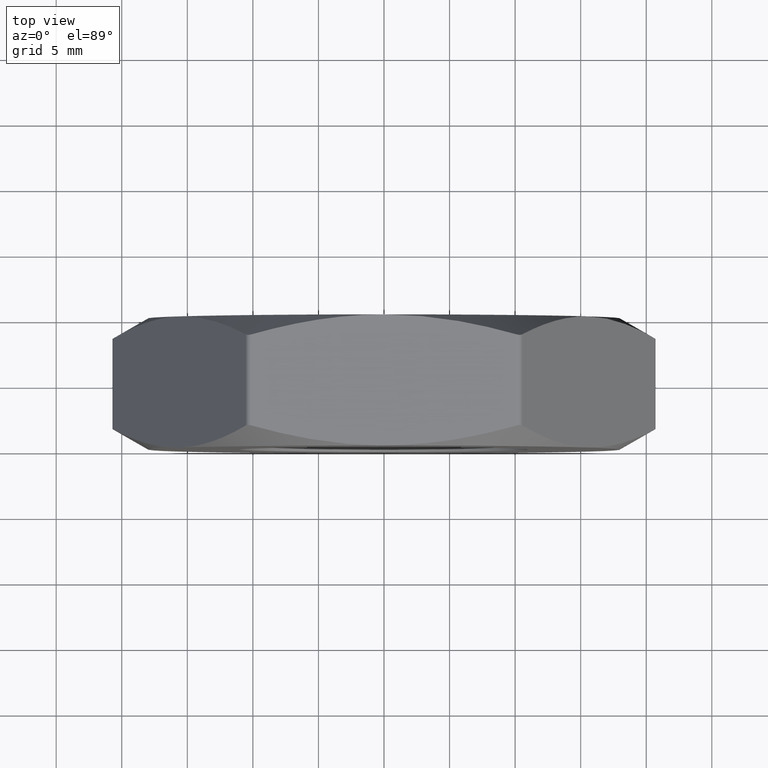
[diagram: clean part render]
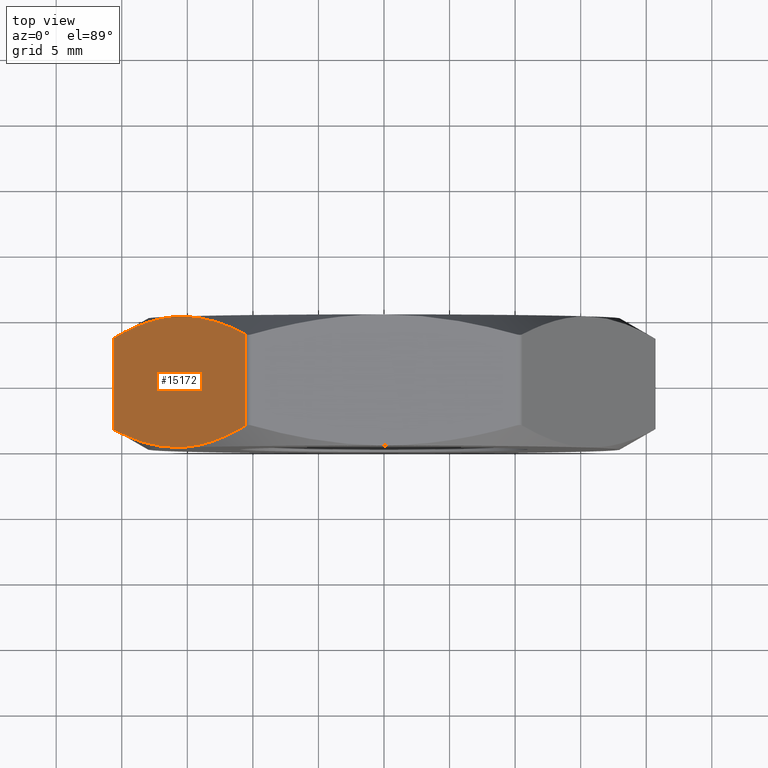
[diagram: same view with one face highlighted and labeled with its STEP entity id]
A machine part, top view. The second image highlights one B-rep face of the part: STEP entity #15172.
In plain terms, the highlighted planar face has unit normal (0.866, 0, -0.5).
Its self-contained STEP definition (entity closure, byte-faithful):
#477 = EDGE_CURVE ( 'NONE', #2554, #2730, #8069, .T. ) ;
#808 = CARTESIAN_POINT ( 'NONE',  ( -20.64027212352911533, 3.474764084930116237, 0.2500000000000018319 ) ) ;
#844 = CARTESIAN_POINT ( 'NONE',  ( -15.58845726811989429, -5.000000000000000000, 9.000000000000000000 ) ) ;
#1112 = EDGE_CURVE ( 'NONE', #2730, #9083, #2156, .T. ) ;
#1323 = CARTESIAN_POINT ( 'NONE',  ( -10.53664241271066615, 5.000000000000000000, 17.75000000000000000 ) ) ;
#1431 = DIRECTION ( 'NONE',  ( -0.000000000000000000, 1.000000000000000000, -0.000000000000000000 ) ) ;
#1765 = CARTESIAN_POINT ( 'NONE',  ( -19.81562494357227422, 3.940851841110033504, 1.678330814003640814 ) ) ;
#2156 = LINE ( 'NONE', #1323, #7371 ) ;
#2554 = VERTEX_POINT ( 'NONE', #6256 ) ;
#2730 = VERTEX_POINT ( 'NONE', #2733 ) ;
#2733 = CARTESIAN_POINT ( 'NONE',  ( -10.53664241271066793, -3.474764084930117125, 17.74999999999999645 ) ) ;
#3221 = VERTEX_POINT ( 'NONE', #4584 ) ;
#3341 = CARTESIAN_POINT ( 'NONE',  ( -18.98092775833401546, -4.325605780329642158, 3.124068747771047150 ) ) ;
#3573 = CARTESIAN_POINT ( 'NONE',  ( -13.87838744799873680, 4.855426502465720162, 11.96192781294000440 ) ) ;
#3910 = CARTESIAN_POINT ( 'NONE',  ( -20.78460969082652454, 5.000000000000000000, 4.296142401927783835E-17 ) ) ;
#4117 = CARTESIAN_POINT ( 'NONE',  ( -16.01798673103119341, 4.991100823725132862, 8.256033146889851793 ) ) ;
#4350 = EDGE_LOOP ( 'NONE', ( #12054, #7231, #13857, #10319, #14772, #6326 ) ) ;
#4584 = CARTESIAN_POINT ( 'NONE',  ( -15.58845726811989429, 5.000000000000000000, 9.000000000000000000 ) ) ;
#4885 = EDGE_CURVE ( 'NONE', #3221, #6655, #10984, .T. ) ;
#5104 = DIRECTION ( 'NONE',  ( -0.5000000000000000000, 0.000000000000000000, -0.8660254037844385966 ) ) ;
#5329 = CARTESIAN_POINT ( 'NONE',  ( -17.29911597758647801, 4.825147480787583376, 6.037052200793661783 ) ) ;
#5681 = CARTESIAN_POINT ( 'NONE',  ( -14.73022884769072327, -4.955776413173643036, 10.48649522868290340 ) ) ;
#5732 = CARTESIAN_POINT ( 'NONE',  ( -13.87779855865330703, -4.825147480787583376, 11.96294779920633644 ) ) ;
#6256 = CARTESIAN_POINT ( 'NONE',  ( -15.58845726811989429, -5.000000000000000000, 9.000000000000000000 ) ) ;
#6326 = ORIENTED_EDGE ( 'NONE', *, *, #6538, .T. ) ;
#6523 = CARTESIAN_POINT ( 'NONE',  ( -18.98413308608382266, 4.324295589834001419, 3.118516957253466337 ) ) ;
#6538 = EDGE_CURVE ( 'NONE', #9083, #3221, #11095, .T. ) ;
#6549 = VECTOR ( 'NONE', #10255, 1000.000000000000000 ) ;
#6655 = VERTEX_POINT ( 'NONE', #808 ) ;
#6871 = CARTESIAN_POINT ( 'NONE',  ( -14.51660190834004993, -4.929390122363204618, 10.85650794150370579 ) ) ;
#6926 = CARTESIAN_POINT ( 'NONE',  ( -13.45470436724229124, -4.722150001668020458, 12.69576843511748088 ) ) ;
#6951 = CARTESIAN_POINT ( 'NONE',  ( -20.64027212352925744, -3.474764084930035857, 0.2499999999997561118 ) ) ;
#7029 = CARTESIAN_POINT ( 'NONE',  ( -11.36128959266750371, -3.940851841110031728, 16.32166918599634897 ) ) ;
#7187 = CARTESIAN_POINT ( 'NONE',  ( -10.53664241271052404, 3.474764084930033192, 17.75000000000024514 ) ) ;
#7231 = ORIENTED_EDGE ( 'NONE', *, *, #11727, .T. ) ;
#7371 = VECTOR ( 'NONE', #1431, 1000.000000000000000 ) ;
#7786 = CARTESIAN_POINT ( 'NONE',  ( -16.44668568854905999, 4.955776413173643036, 7.513504771317089492 ) ) ;
#7866 = AXIS2_PLACEMENT_3D ( 'NONE', #3910, #13577, #5104 ) ;
#7913 = CARTESIAN_POINT ( 'NONE',  ( -20.64027212352911533, 5.000000000000000000, 0.2500000000000020539 ) ) ;
#8069 = B_SPLINE_CURVE_WITH_KNOTS ( 'NONE', 3,
 ( #9390, #10395, #12886, #5681, #6871, #5732, #6926, #9290, #7029, #13140 ),
 .UNSPECIFIED., .F., .F.,
 ( 4, 2, 2, 2, 4 ),
 ( 0.01051554819734979752, 0.01178791190731938270, 0.01306027561728896787, 0.01560500303722813648, 0.02069445787710647716 ),
 .UNSPECIFIED. ) ;
#8073 = CARTESIAN_POINT ( 'NONE',  ( -19.81360279745487318, -3.941994751156223220, 1.681833273819301589 ) ) ;
#8402 = FACE_OUTER_BOUND ( 'NONE', #4350, .T. ) ;
#8417 = CARTESIAN_POINT ( 'NONE',  ( -14.72823059347553709, 5.000000000000002665, 10.48995630651004696 ) ) ;
#8837 = B_SPLINE_CURVE_WITH_KNOTS ( 'NONE', 3,
 ( #6951, #8073, #3341, #10536, #9367, #844 ),
 .UNSPECIFIED., .F., .F.,
 ( 4, 2, 4 ),
 ( 0.0002977047320976027901, 0.005406626464723699940, 0.01051554819734979752 ),
 .UNSPECIFIED. ) ;
#8935 = CARTESIAN_POINT ( 'NONE',  ( -15.58845726811989429, 5.000000000000000000, 9.000000000000000000 ) ) ;
#9083 = VERTEX_POINT ( 'NONE', #14156 ) ;
#9290 = CARTESIAN_POINT ( 'NONE',  ( -12.19278145015596237, -4.324295589834004083, 14.88148304274652922 ) ) ;
#9367 = CARTESIAN_POINT ( 'NONE',  ( -16.44868394276425505, -5.000000000000003553, 7.510043693489953931 ) ) ;
#9390 = CARTESIAN_POINT ( 'NONE',  ( -15.58845726811989429, -5.000000000000000000, 9.000000000000000000 ) ) ;
#9869 = PLANE ( 'NONE',  #7866 ) ;
#10255 = DIRECTION ( 'NONE',  ( 0.000000000000000000, -1.000000000000000000, 0.000000000000000000 ) ) ;
#10319 = ORIENTED_EDGE ( 'NONE', *, *, #477, .T. ) ;
#10395 = CARTESIAN_POINT ( 'NONE',  ( -15.37422004538547959, -5.000000000000002665, 9.371069754648450711 ) ) ;
#10536 = CARTESIAN_POINT ( 'NONE',  ( -17.29852708824104468, -4.855426502465721050, 6.038072187059994711 ) ) ;
#10769 = CARTESIAN_POINT ( 'NONE',  ( -12.19598677790576957, 4.325605780329639494, 14.87593125222895729 ) ) ;
#10984 = B_SPLINE_CURVE_WITH_KNOTS ( 'NONE', 3,
 ( #8935, #11303, #4117, #7786, #12532, #5329, #13732, #6523, #1765, #14934 ),
 .UNSPECIFIED., .F., .F.,
 ( 4, 2, 2, 2, 4 ),
 ( 0.01051554819734979926, 0.01178791190731938270, 0.01306027561728896960, 0.01560500303722813994, 0.02069445787710647716 ),
 .UNSPECIFIED. ) ;
#11093 = VERTEX_POINT ( 'NONE', #13449 ) ;
#11095 = B_SPLINE_CURVE_WITH_KNOTS ( 'NONE', 3,
 ( #7187, #15540, #10769, #3573, #8417, #11933 ),
 .UNSPECIFIED., .F., .F.,
 ( 4, 2, 4 ),
 ( 0.0002977047320975966644, 0.005406626464723697338, 0.01051554819734979926 ),
 .UNSPECIFIED. ) ;
#11303 = CARTESIAN_POINT ( 'NONE',  ( -15.80269449085430722, 5.000000000000003553, 8.628930245351545736 ) ) ;
#11727 = EDGE_CURVE ( 'NONE', #6655, #11093, #13876, .T. ) ;
#11933 = CARTESIAN_POINT ( 'NONE',  ( -15.58845726811989429, 5.000000000000000000, 9.000000000000000000 ) ) ;
#12054 = ORIENTED_EDGE ( 'NONE', *, *, #4885, .T. ) ;
#12532 = CARTESIAN_POINT ( 'NONE',  ( -16.66031262789973511, 4.929390122363203730, 7.143492058496286212 ) ) ;
#12650 = EDGE_CURVE ( 'NONE', #11093, #2554, #8837, .T. ) ;
#12886 = CARTESIAN_POINT ( 'NONE',  ( -15.15892780520859340, -4.991100823725133750, 9.743966853110142878 ) ) ;
#13140 = CARTESIAN_POINT ( 'NONE',  ( -10.53664241271066793, -3.474764084930117125, 17.74999999999999645 ) ) ;
#13449 = CARTESIAN_POINT ( 'NONE',  ( -20.64027212352925744, -3.474764084930035857, 0.2499999999997561118 ) ) ;
#13577 = DIRECTION ( 'NONE',  ( 0.8660254037844387076, 0.000000000000000000, -0.5000000000000001110 ) ) ;
#13732 = CARTESIAN_POINT ( 'NONE',  ( -17.72221016899749202, 4.722150001668016905, 5.304231564882512906 ) ) ;
#13857 = ORIENTED_EDGE ( 'NONE', *, *, #12650, .T. ) ;
#13876 = LINE ( 'NONE', #7913, #6549 ) ;
#14156 = CARTESIAN_POINT ( 'NONE',  ( -10.53664241271052404, 3.474764084930033192, 17.75000000000024514 ) ) ;
#14772 = ORIENTED_EDGE ( 'NONE', *, *, #1112, .T. ) ;
#14934 = CARTESIAN_POINT ( 'NONE',  ( -20.64027212352911533, 3.474764084930116237, 0.2500000000000018319 ) ) ;
#15172 = ADVANCED_FACE ( 'NONE', ( #8402 ), #9869, .F. ) ;
#15540 = CARTESIAN_POINT ( 'NONE',  ( -11.36331173878490297, 3.941994751156219667, 16.31816672618070285 ) ) ;